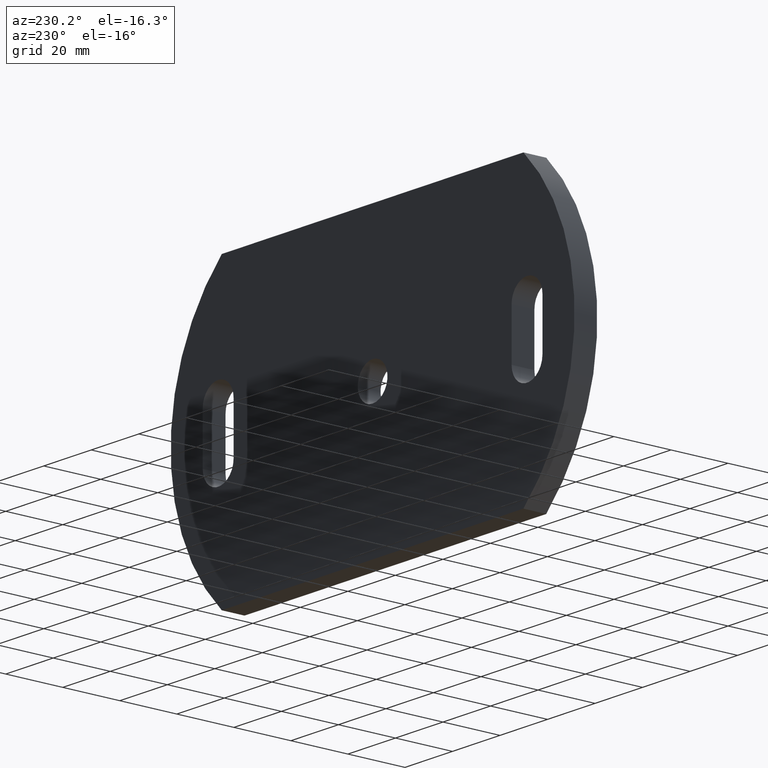
[diagram: clean part render]
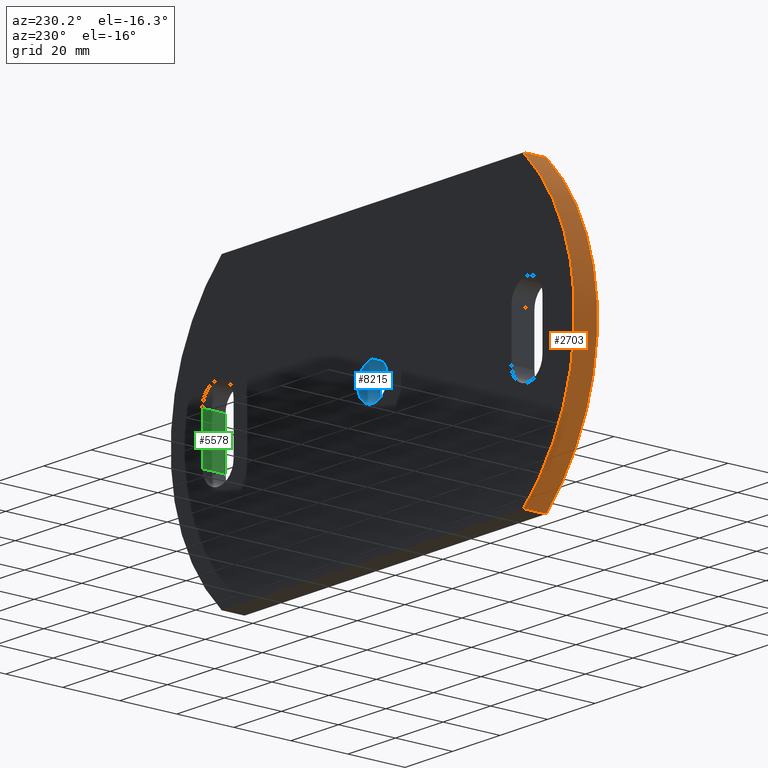
[diagram: same view with three faces highlighted in distinct colors, each labeled with its STEP entity id]
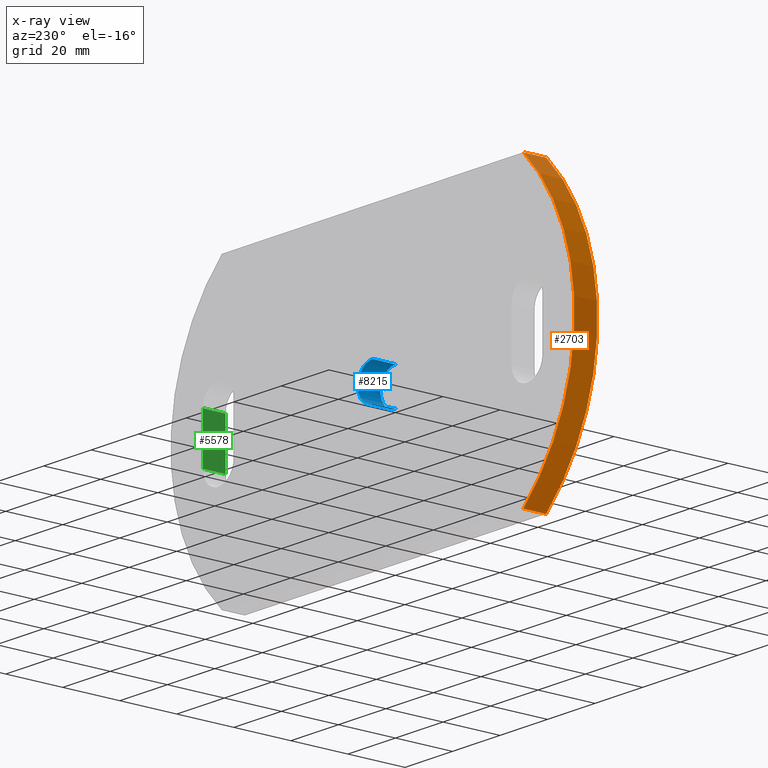
[diagram: x-ray of the same camera — body ghosted, the three highlighted faces saturated]
A machine part, auxiliary view with three faces highlighted in distinct colors.
The next image is the same camera in x-ray (body ghosted, the three faces saturated) — at least one of them is partly hidden behind the body in this view.
Their STEP definitions:

[orange] entity #2703 — the highlighted cylindrical surface (partial cylindrical patch) has radius 68.8895 mm, axis along (-0, -1, -0).
#313 = DIRECTION ( 'NONE',  ( 0.0000000000000000000, 1.000000000000000000, 0.0000000000000000000 ) ) ;
#394 = EDGE_CURVE ( 'NONE', #4260, #2837, #7217, .T. ) ;
#770 = EDGE_CURVE ( 'NONE', #8717, #9317, #2670, .T. ) ;
#1106 = CARTESIAN_POINT ( 'NONE',  ( -63.50000000000001400, 8.000000000000000000, 49.99999999999997900 ) ) ;
#2038 = ORIENTED_EDGE ( 'NONE', *, *, #394, .F. ) ;
#2301 = ORIENTED_EDGE ( 'NONE', *, *, #770, .T. ) ;
#2644 = AXIS2_PLACEMENT_3D ( 'NONE', #6976, #313, #2727 ) ;
#2670 = LINE ( 'NONE', #7960, #8954 ) ;
#2703 = ADVANCED_FACE ( 'NONE', ( #4686 ), #8658, .T. ) ;
#2727 = DIRECTION ( 'NONE',  ( 0.0000000000000000000, 0.0000000000000000000, 1.000000000000000000 ) ) ;
#2837 = VERTEX_POINT ( 'NONE', #7357 ) ;
#2848 = DIRECTION ( 'NONE',  ( -0.0000000000000000000, -1.000000000000000000, -0.0000000000000000000 ) ) ;
#3681 = CARTESIAN_POINT ( 'NONE',  ( -16.11046511627906600, 0.0000000000000000000, -3.469446951953614200E-015 ) ) ;
#3869 = CARTESIAN_POINT ( 'NONE',  ( -63.49999999999997200, 0.0000000000000000000, -50.00000000000002800 ) ) ;
#4236 = CIRCLE ( 'NONE', #2644, 68.88953488372092700 ) ;
#4260 = VERTEX_POINT ( 'NONE', #1106 ) ;
#4313 = CARTESIAN_POINT ( 'NONE',  ( -63.49999999999997200, 8.000000000000000000, -50.00000000000002800 ) ) ;
#4551 = DIRECTION ( 'NONE',  ( 0.0000000000000000000, 0.0000000000000000000, 1.000000000000000000 ) ) ;
#4686 = FACE_OUTER_BOUND ( 'NONE', #10083, .T. ) ;
#5701 = ORIENTED_EDGE ( 'NONE', *, *, #8425, .T. ) ;
#5814 = ORIENTED_EDGE ( 'NONE', *, *, #8365, .F. ) ;
#6976 = CARTESIAN_POINT ( 'NONE',  ( -16.11046511627906600, 8.000000000000000000, -3.469446951953614200E-015 ) ) ;
#7217 = LINE ( 'NONE', #9110, #8164 ) ;
#7357 = CARTESIAN_POINT ( 'NONE',  ( -63.50000000000001400, 0.0000000000000000000, 49.99999999999997900 ) ) ;
#7497 = DIRECTION ( 'NONE',  ( -0.0000000000000000000, -1.000000000000000000, -0.0000000000000000000 ) ) ;
#7960 = CARTESIAN_POINT ( 'NONE',  ( -63.49999999999997200, 8.000000000000000000, -50.00000000000002800 ) ) ;
#8164 = VECTOR ( 'NONE', #7497, 1000.000000000000000 ) ;
#8365 = EDGE_CURVE ( 'NONE', #8717, #4260, #4236, .T. ) ;
#8425 = EDGE_CURVE ( 'NONE', #9317, #2837, #8639, .T. ) ;
#8639 = CIRCLE ( 'NONE', #10294, 68.88953488372092700 ) ;
#8658 = CYLINDRICAL_SURFACE ( 'NONE', #9711, 68.88953488372092700 ) ;
#8717 = VERTEX_POINT ( 'NONE', #4313 ) ;
#8733 = DIRECTION ( 'NONE',  ( -0.0000000000000000000, -1.000000000000000000, -0.0000000000000000000 ) ) ;
#8954 = VECTOR ( 'NONE', #8733, 1000.000000000000000 ) ;
#9110 = CARTESIAN_POINT ( 'NONE',  ( -63.50000000000001400, 8.000000000000000000, 49.99999999999997900 ) ) ;
#9317 = VERTEX_POINT ( 'NONE', #3869 ) ;
#9561 = CARTESIAN_POINT ( 'NONE',  ( -16.11046511627906600, 8.000000000000000000, -3.469446951953614200E-015 ) ) ;
#9631 = DIRECTION ( 'NONE',  ( 0.0000000000000000000, 1.000000000000000000, 0.0000000000000000000 ) ) ;
#9711 = AXIS2_PLACEMENT_3D ( 'NONE', #9561, #2848, #10503 ) ;
#10083 = EDGE_LOOP ( 'NONE', ( #5701, #2038, #5814, #2301 ) ) ;
#10294 = AXIS2_PLACEMENT_3D ( 'NONE', #3681, #9631, #4551 ) ;
#10503 = DIRECTION ( 'NONE',  ( 0.0000000000000000000, 0.0000000000000000000, -1.000000000000000000 ) ) ;

[blue] entity #8215 — the highlighted cylindrical surface (edge-blend (fillet) strip) has radius 6.25 mm, axis along (-0, 1, -0).
#350 = LINE ( 'NONE', #1462, #4769 ) ;
#416 = CARTESIAN_POINT ( 'NONE',  ( 0.0000000000000000000, 8.000000000000000000, 0.0000000000000000000 ) ) ;
#564 = DIRECTION ( 'NONE',  ( -0.0000000000000000000, 1.000000000000000000, -0.0000000000000000000 ) ) ;
#996 = EDGE_CURVE ( 'NONE', #5662, #10049, #10562, .T. ) ;
#1140 = CYLINDRICAL_SURFACE ( 'NONE', #4027, 6.250000000000000000 ) ;
#1462 = CARTESIAN_POINT ( 'NONE',  ( 0.0000000000000000000, 0.0000000000000000000, 6.250000000000000000 ) ) ;
#1535 = FACE_OUTER_BOUND ( 'NONE', #6610, .T. ) ;
#2988 = ORIENTED_EDGE ( 'NONE', *, *, #3570, .F. ) ;
#3248 = CARTESIAN_POINT ( 'NONE',  ( 0.0000000000000000000, 0.0000000000000000000, 0.0000000000000000000 ) ) ;
#3307 = LINE ( 'NONE', #7334, #8652 ) ;
#3439 = CARTESIAN_POINT ( 'NONE',  ( 0.0000000000000000000, 8.000000000000000000, 6.250000000000000000 ) ) ;
#3570 = EDGE_CURVE ( 'NONE', #10049, #4223, #3307, .T. ) ;
#4027 = AXIS2_PLACEMENT_3D ( 'NONE', #6045, #6122, #10338 ) ;
#4120 = DIRECTION ( 'NONE',  ( 0.0000000000000000000, 1.000000000000000000, 0.0000000000000000000 ) ) ;
#4184 = CARTESIAN_POINT ( 'NONE',  ( 0.0000000000000000000, 0.0000000000000000000, 6.250000000000000000 ) ) ;
#4223 = VERTEX_POINT ( 'NONE', #8692 ) ;
#4769 = VECTOR ( 'NONE', #564, 1000.000000000000000 ) ;
#5662 = VERTEX_POINT ( 'NONE', #4184 ) ;
#5789 = DIRECTION ( 'NONE',  ( 0.0000000000000000000, 0.0000000000000000000, 1.000000000000000000 ) ) ;
#6045 = CARTESIAN_POINT ( 'NONE',  ( 0.0000000000000000000, 0.0000000000000000000, 0.0000000000000000000 ) ) ;
#6122 = DIRECTION ( 'NONE',  ( -0.0000000000000000000, 1.000000000000000000, -0.0000000000000000000 ) ) ;
#6610 = EDGE_LOOP ( 'NONE', ( #2988, #10437, #10798, #7512 ) ) ;
#6940 = CARTESIAN_POINT ( 'NONE',  ( 7.654042494670957600E-016, 0.0000000000000000000, -6.250000000000000000 ) ) ;
#7334 = CARTESIAN_POINT ( 'NONE',  ( 7.654042494670957600E-016, 0.0000000000000000000, -6.250000000000000000 ) ) ;
#7424 = DIRECTION ( 'NONE',  ( 0.0000000000000000000, 1.000000000000000000, 0.0000000000000000000 ) ) ;
#7512 = ORIENTED_EDGE ( 'NONE', *, *, #8495, .T. ) ;
#7795 = AXIS2_PLACEMENT_3D ( 'NONE', #416, #7424, #5789 ) ;
#8215 = ADVANCED_FACE ( 'NONE', ( #1535 ), #1140, .F. ) ;
#8495 = EDGE_CURVE ( 'NONE', #10011, #4223, #10223, .T. ) ;
#8652 = VECTOR ( 'NONE', #10749, 1000.000000000000000 ) ;
#8692 = CARTESIAN_POINT ( 'NONE',  ( 7.654042494670957600E-016, 8.000000000000000000, -6.250000000000000000 ) ) ;
#8851 = AXIS2_PLACEMENT_3D ( 'NONE', #3248, #4120, #10039 ) ;
#9011 = EDGE_CURVE ( 'NONE', #5662, #10011, #350, .T. ) ;
#10011 = VERTEX_POINT ( 'NONE', #3439 ) ;
#10039 = DIRECTION ( 'NONE',  ( 0.0000000000000000000, 0.0000000000000000000, 1.000000000000000000 ) ) ;
#10049 = VERTEX_POINT ( 'NONE', #6940 ) ;
#10223 = CIRCLE ( 'NONE', #7795, 6.250000000000000000 ) ;
#10338 = DIRECTION ( 'NONE',  ( 0.0000000000000000000, 0.0000000000000000000, 1.000000000000000000 ) ) ;
#10437 = ORIENTED_EDGE ( 'NONE', *, *, #996, .F. ) ;
#10562 = CIRCLE ( 'NONE', #8851, 6.250000000000000000 ) ;
#10749 = DIRECTION ( 'NONE',  ( -0.0000000000000000000, 1.000000000000000000, -0.0000000000000000000 ) ) ;
#10798 = ORIENTED_EDGE ( 'NONE', *, *, #9011, .T. ) ;

[green] entity #5578 — the highlighted planar face has unit normal (1, 0, -0).
#96 = CARTESIAN_POINT ( 'NONE',  ( 71.50000000000000000, 0.0000000000000000000, 8.500000000000010700 ) ) ;
#238 = CARTESIAN_POINT ( 'NONE',  ( 71.50000000000000000, 8.000000000000000000, 8.500000000000010700 ) ) ;
#761 = LINE ( 'NONE', #96, #2776 ) ;
#789 = ORIENTED_EDGE ( 'NONE', *, *, #8409, .F. ) ;
#880 = CARTESIAN_POINT ( 'NONE',  ( 71.50000000000000000, 8.000000000000000000, -8.500000000000010700 ) ) ;
#925 = CARTESIAN_POINT ( 'NONE',  ( 71.50000000000000000, 8.000000000000000000, -8.500000000000010700 ) ) ;
#1787 = CARTESIAN_POINT ( 'NONE',  ( 71.50000000000000000, 0.0000000000000000000, -8.500000000000010700 ) ) ;
#1979 = DIRECTION ( 'NONE',  ( -0.0000000000000000000, -0.0000000000000000000, -1.000000000000000000 ) ) ;
#2450 = ORIENTED_EDGE ( 'NONE', *, *, #10020, .T. ) ;
#2776 = VECTOR ( 'NONE', #4393, 1000.000000000000000 ) ;
#2994 = DIRECTION ( 'NONE',  ( -0.0000000000000000000, 1.000000000000000000, -0.0000000000000000000 ) ) ;
#3211 = CARTESIAN_POINT ( 'NONE',  ( 71.50000000000000000, 0.0000000000000000000, 8.500000000000010700 ) ) ;
#3401 = VERTEX_POINT ( 'NONE', #880 ) ;
#3830 = EDGE_CURVE ( 'NONE', #7668, #10067, #761, .T. ) ;
#3891 = EDGE_CURVE ( 'NONE', #7374, #3401, #5162, .T. ) ;
#4379 = VECTOR ( 'NONE', #2994, 1000.000000000000000 ) ;
#4393 = DIRECTION ( 'NONE',  ( -0.0000000000000000000, 1.000000000000000000, -0.0000000000000000000 ) ) ;
#4874 = VECTOR ( 'NONE', #6829, 1000.000000000000000 ) ;
#5105 = ORIENTED_EDGE ( 'NONE', *, *, #3830, .T. ) ;
#5162 = LINE ( 'NONE', #9039, #4379 ) ;
#5578 = ADVANCED_FACE ( 'NONE', ( #5615 ), #10890, .F. ) ;
#5615 = FACE_OUTER_BOUND ( 'NONE', #7870, .T. ) ;
#5727 = ORIENTED_EDGE ( 'NONE', *, *, #3891, .F. ) ;
#5824 = LINE ( 'NONE', #8739, #9279 ) ;
#6635 = CARTESIAN_POINT ( 'NONE',  ( 71.50000000000000000, 0.0000000000000000000, -8.500000000000010700 ) ) ;
#6829 = DIRECTION ( 'NONE',  ( -0.0000000000000000000, -0.0000000000000000000, -1.000000000000000000 ) ) ;
#7374 = VERTEX_POINT ( 'NONE', #1787 ) ;
#7482 = DIRECTION ( 'NONE',  ( -0.0000000000000000000, 0.0000000000000000000, -1.000000000000000000 ) ) ;
#7668 = VERTEX_POINT ( 'NONE', #3211 ) ;
#7870 = EDGE_LOOP ( 'NONE', ( #2450, #5727, #789, #5105 ) ) ;
#7940 = AXIS2_PLACEMENT_3D ( 'NONE', #6635, #8287, #7482 ) ;
#8287 = DIRECTION ( 'NONE',  ( 1.000000000000000000, 0.0000000000000000000, -0.0000000000000000000 ) ) ;
#8409 = EDGE_CURVE ( 'NONE', #7668, #7374, #5824, .T. ) ;
#8739 = CARTESIAN_POINT ( 'NONE',  ( 71.50000000000000000, 0.0000000000000000000, -8.500000000000010700 ) ) ;
#9039 = CARTESIAN_POINT ( 'NONE',  ( 71.50000000000000000, 0.0000000000000000000, -8.500000000000010700 ) ) ;
#9279 = VECTOR ( 'NONE', #1979, 1000.000000000000000 ) ;
#10020 = EDGE_CURVE ( 'NONE', #10067, #3401, #10874, .T. ) ;
#10067 = VERTEX_POINT ( 'NONE', #238 ) ;
#10874 = LINE ( 'NONE', #925, #4874 ) ;
#10890 = PLANE ( 'NONE',  #7940 ) ;